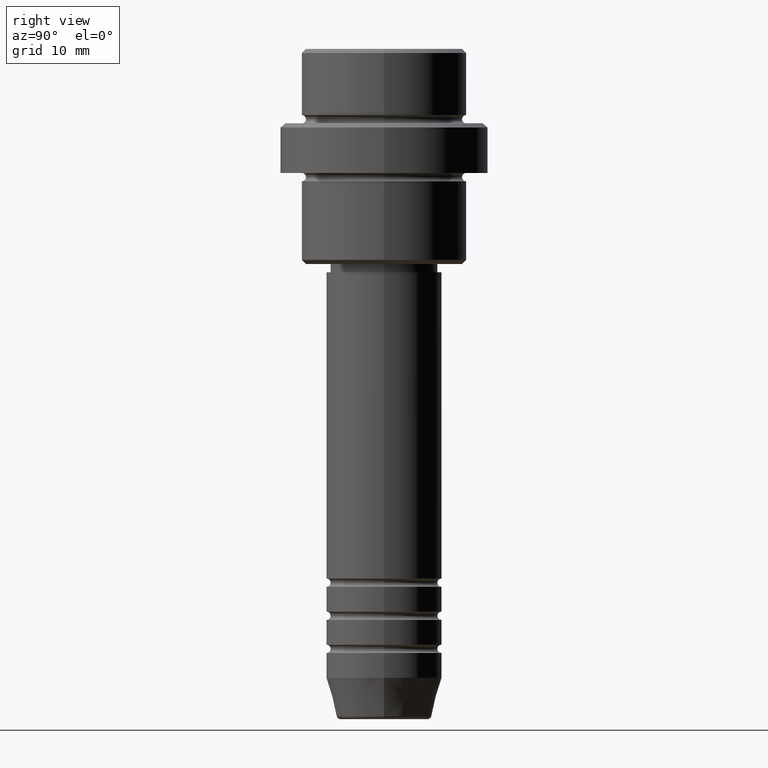
[diagram: clean part render]
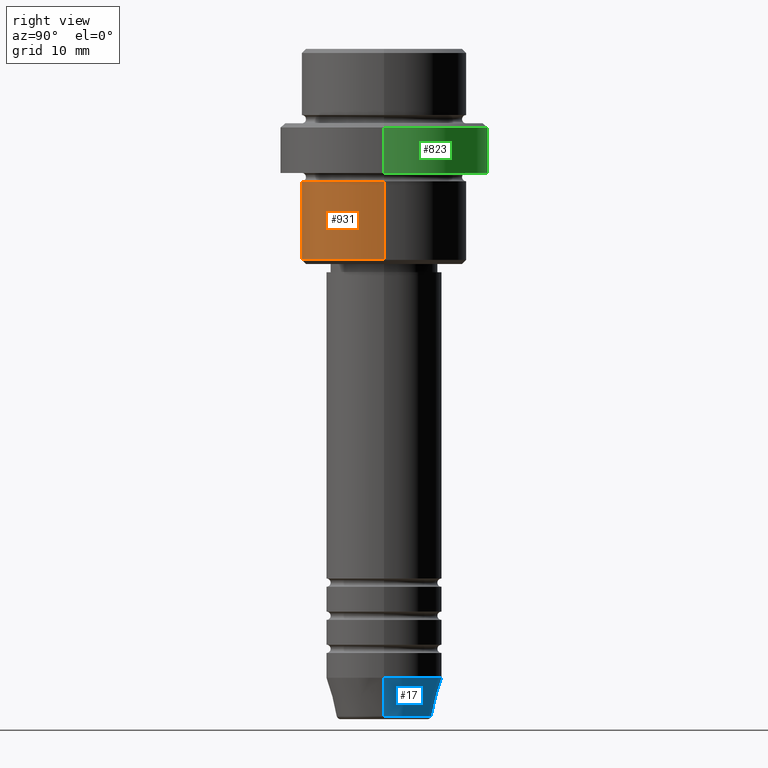
[diagram: same view with three faces highlighted in distinct colors, each labeled with its STEP entity id]
A machine part, right view with three faces highlighted in distinct colors.
Their STEP definitions:

[orange] entity #931 — the highlighted cylindrical surface (partial cylindrical patch) has radius 10 mm, axis along (-0, -0, 1).
#69 = EDGE_CURVE ( 'NONE', #1130, #269, #154, .T. ) ;
#101 = DIRECTION ( 'NONE',  ( -0.000000000000000000, -0.000000000000000000, 1.000000000000000000 ) ) ;
#154 = LINE ( 'NONE', #1236, #488 ) ;
#167 = AXIS2_PLACEMENT_3D ( 'NONE', #1020, #1148, #1366 ) ;
#212 = CARTESIAN_POINT ( 'NONE',  ( -10.00000000000000000, 1.224646799147353256E-15, -16.00000000000000000 ) ) ;
#253 = ORIENTED_EDGE ( 'NONE', *, *, #1200, .F. ) ;
#259 = DIRECTION ( 'NONE',  ( 1.000000000000000000, 0.000000000000000000, 0.000000000000000000 ) ) ;
#269 = VERTEX_POINT ( 'NONE', #1301 ) ;
#348 = VERTEX_POINT ( 'NONE', #1322 ) ;
#350 = VECTOR ( 'NONE', #1044, 1000.000000000000000 ) ;
#359 = VERTEX_POINT ( 'NONE', #212 ) ;
#366 = DIRECTION ( 'NONE',  ( -0.000000000000000000, -0.000000000000000000, 1.000000000000000000 ) ) ;
#488 = VECTOR ( 'NONE', #366, 1000.000000000000000 ) ;
#539 = EDGE_CURVE ( 'NONE', #348, #1130, #1267, .T. ) ;
#566 = EDGE_CURVE ( 'NONE', #348, #359, #1136, .T. ) ;
#579 = AXIS2_PLACEMENT_3D ( 'NONE', #1258, #906, #259 ) ;
#604 = CARTESIAN_POINT ( 'NONE',  ( -10.00000000000000000, 1.224646799147353256E-15, 0.000000000000000000 ) ) ;
#705 = CYLINDRICAL_SURFACE ( 'NONE', #579, 10.00000000000000000 ) ;
#789 = FACE_OUTER_BOUND ( 'NONE', #1393, .T. ) ;
#867 = CARTESIAN_POINT ( 'NONE',  ( 0.000000000000000000, 0.000000000000000000, -16.00000000000000000 ) ) ;
#891 = ORIENTED_EDGE ( 'NONE', *, *, #539, .T. ) ;
#906 = DIRECTION ( 'NONE',  ( -0.000000000000000000, -0.000000000000000000, 1.000000000000000000 ) ) ;
#908 = ORIENTED_EDGE ( 'NONE', *, *, #566, .F. ) ;
#931 = ADVANCED_FACE ( 'NONE', ( #789 ), #705, .T. ) ;
#942 = CARTESIAN_POINT ( 'NONE',  ( 10.00000000000000000, 0.000000000000000000, -25.50000000000000355 ) ) ;
#1020 = CARTESIAN_POINT ( 'NONE',  ( 0.000000000000000000, 0.000000000000000000, -25.50000000000000355 ) ) ;
#1044 = DIRECTION ( 'NONE',  ( -0.000000000000000000, -0.000000000000000000, 1.000000000000000000 ) ) ;
#1081 = DIRECTION ( 'NONE',  ( 1.000000000000000000, 0.000000000000000000, 0.000000000000000000 ) ) ;
#1130 = VERTEX_POINT ( 'NONE', #942 ) ;
#1136 = LINE ( 'NONE', #604, #350 ) ;
#1148 = DIRECTION ( 'NONE',  ( -0.000000000000000000, -0.000000000000000000, 1.000000000000000000 ) ) ;
#1200 = EDGE_CURVE ( 'NONE', #359, #269, #1336, .T. ) ;
#1236 = CARTESIAN_POINT ( 'NONE',  ( 10.00000000000000000, 0.000000000000000000, 0.000000000000000000 ) ) ;
#1258 = CARTESIAN_POINT ( 'NONE',  ( 0.000000000000000000, 0.000000000000000000, 0.000000000000000000 ) ) ;
#1267 = CIRCLE ( 'NONE', #167, 10.00000000000000000 ) ;
#1301 = CARTESIAN_POINT ( 'NONE',  ( 10.00000000000000000, 0.000000000000000000, -16.00000000000000000 ) ) ;
#1314 = AXIS2_PLACEMENT_3D ( 'NONE', #867, #101, #1081 ) ;
#1322 = CARTESIAN_POINT ( 'NONE',  ( -10.00000000000000000, 1.224646799147353256E-15, -25.50000000000000355 ) ) ;
#1336 = CIRCLE ( 'NONE', #1314, 10.00000000000000000 ) ;
#1366 = DIRECTION ( 'NONE',  ( -1.000000000000000000, 0.000000000000000000, 0.000000000000000000 ) ) ;
#1380 = ORIENTED_EDGE ( 'NONE', *, *, #69, .T. ) ;
#1393 = EDGE_LOOP ( 'NONE', ( #908, #891, #1380, #253 ) ) ;

[blue] entity #17 — the highlighted conical surface has half-angle 15 deg.
#16 = CARTESIAN_POINT ( 'NONE',  ( -7.000000000000000000, 8.572527594031473190E-16, -76.00000000000001421 ) ) ;
#17 = ADVANCED_FACE ( 'NONE', ( #889 ), #740, .T. ) ;
#32 = DIRECTION ( 'NONE',  ( 0.2588190451025220162, 0.000000000000000000, 0.9659258262890678681 ) ) ;
#40 = CARTESIAN_POINT ( 'NONE',  ( 0.000000000000000000, 0.000000000000000000, -76.00000000000001421 ) ) ;
#53 = EDGE_CURVE ( 'NONE', #868, #203, #1154, .T. ) ;
#70 = VECTOR ( 'NONE', #32, 1000.000000000000114 ) ;
#77 = ORIENTED_EDGE ( 'NONE', *, *, #572, .F. ) ;
#115 = AXIS2_PLACEMENT_3D ( 'NONE', #40, #153, #814 ) ;
#151 = VERTEX_POINT ( 'NONE', #805 ) ;
#153 = DIRECTION ( 'NONE',  ( -0.000000000000000000, -0.000000000000000000, 1.000000000000000000 ) ) ;
#169 = AXIS2_PLACEMENT_3D ( 'NONE', #343, #234, #563 ) ;
#203 = VERTEX_POINT ( 'NONE', #414 ) ;
#234 = DIRECTION ( 'NONE',  ( -0.000000000000000000, -0.000000000000000000, 1.000000000000000000 ) ) ;
#250 = CARTESIAN_POINT ( 'NONE',  ( -7.000000000000000000, 8.572527594031473190E-16, -76.00000000000001421 ) ) ;
#267 = DIRECTION ( 'NONE',  ( 1.000000000000000000, 0.000000000000000000, 0.000000000000000000 ) ) ;
#291 = ORIENTED_EDGE ( 'NONE', *, *, #53, .T. ) ;
#343 = CARTESIAN_POINT ( 'NONE',  ( 0.000000000000000000, 0.000000000000000000, -76.00000000000001421 ) ) ;
#414 = CARTESIAN_POINT ( 'NONE',  ( -5.759553456999441323, 7.812973149831956703E-16, -80.62940952255125637 ) ) ;
#422 = VECTOR ( 'NONE', #1026, 1000.000000000000114 ) ;
#533 = AXIS2_PLACEMENT_3D ( 'NONE', #1360, #598, #267 ) ;
#563 = DIRECTION ( 'NONE',  ( 1.000000000000000000, 0.000000000000000000, 0.000000000000000000 ) ) ;
#572 = EDGE_CURVE ( 'NONE', #151, #974, #1150, .T. ) ;
#590 = LINE ( 'NONE', #16, #422 ) ;
#598 = DIRECTION ( 'NONE',  ( -0.000000000000000000, -0.000000000000000000, 1.000000000000000000 ) ) ;
#692 = LINE ( 'NONE', #801, #70 ) ;
#740 = CONICAL_SURFACE ( 'NONE', #169, 7.000000000000000000, 0.2617993877991507956 ) ;
#751 = ORIENTED_EDGE ( 'NONE', *, *, #938, .T. ) ;
#801 = CARTESIAN_POINT ( 'NONE',  ( 7.000000000000000000, 0.000000000000000000, -76.00000000000001421 ) ) ;
#805 = CARTESIAN_POINT ( 'NONE',  ( 7.000000000000000000, 0.000000000000000000, -76.00000000000001421 ) ) ;
#814 = DIRECTION ( 'NONE',  ( 1.000000000000000000, 0.000000000000000000, 0.000000000000000000 ) ) ;
#868 = VERTEX_POINT ( 'NONE', #1325 ) ;
#889 = FACE_OUTER_BOUND ( 'NONE', #1392, .T. ) ;
#927 = EDGE_CURVE ( 'NONE', #868, #151, #692, .T. ) ;
#938 = EDGE_CURVE ( 'NONE', #203, #974, #590, .T. ) ;
#974 = VERTEX_POINT ( 'NONE', #250 ) ;
#1026 = DIRECTION ( 'NONE',  ( -0.2588190451025220162, 3.169619151431780349E-17, 0.9659258262890678681 ) ) ;
#1116 = ORIENTED_EDGE ( 'NONE', *, *, #927, .F. ) ;
#1150 = CIRCLE ( 'NONE', #115, 7.000000000000000000 ) ;
#1154 = CIRCLE ( 'NONE', #533, 5.759553456999441323 ) ;
#1325 = CARTESIAN_POINT ( 'NONE',  ( 5.759553456999441323, 0.000000000000000000, -80.62940952255125637 ) ) ;
#1360 = CARTESIAN_POINT ( 'NONE',  ( 0.000000000000000000, 0.000000000000000000, -80.62940952255125637 ) ) ;
#1392 = EDGE_LOOP ( 'NONE', ( #291, #751, #77, #1116 ) ) ;

[green] entity #823 — the highlighted cylindrical surface (partial cylindrical patch) has radius 12.5 mm, axis along (-0, -0, 1).
#49 = AXIS2_PLACEMENT_3D ( 'NONE', #361, #912, #1113 ) ;
#56 = ORIENTED_EDGE ( 'NONE', *, *, #970, .T. ) ;
#73 = VECTOR ( 'NONE', #1021, 1000.000000000000000 ) ;
#125 = EDGE_CURVE ( 'NONE', #797, #997, #1122, .T. ) ;
#146 = VECTOR ( 'NONE', #175, 1000.000000000000000 ) ;
#149 = VERTEX_POINT ( 'NONE', #161 ) ;
#161 = CARTESIAN_POINT ( 'NONE',  ( 12.50000000000000000, 0.000000000000000000, -15.00000000000000178 ) ) ;
#175 = DIRECTION ( 'NONE',  ( -0.000000000000000000, -0.000000000000000000, 1.000000000000000000 ) ) ;
#215 = AXIS2_PLACEMENT_3D ( 'NONE', #1134, #1329, #456 ) ;
#303 = CARTESIAN_POINT ( 'NONE',  ( 12.50000000000000000, 0.000000000000000000, 0.000000000000000000 ) ) ;
#361 = CARTESIAN_POINT ( 'NONE',  ( 0.000000000000000000, 0.000000000000000000, -9.499999999999992895 ) ) ;
#378 = CARTESIAN_POINT ( 'NONE',  ( -12.50000000000000000, 1.530808498934191521E-15, -9.499999999999992895 ) ) ;
#456 = DIRECTION ( 'NONE',  ( 1.000000000000000000, 0.000000000000000000, 0.000000000000000000 ) ) ;
#470 = CARTESIAN_POINT ( 'NONE',  ( 12.50000000000000000, 0.000000000000000000, -9.499999999999992895 ) ) ;
#560 = CARTESIAN_POINT ( 'NONE',  ( 0.000000000000000000, 0.000000000000000000, 0.000000000000000000 ) ) ;
#646 = FACE_OUTER_BOUND ( 'NONE', #980, .T. ) ;
#676 = CARTESIAN_POINT ( 'NONE',  ( -12.50000000000000000, 1.530808498934191521E-15, -15.00000000000000178 ) ) ;
#797 = VERTEX_POINT ( 'NONE', #676 ) ;
#823 = ADVANCED_FACE ( 'NONE', ( #646 ), #892, .T. ) ;
#862 = DIRECTION ( 'NONE',  ( 1.000000000000000000, 0.000000000000000000, 0.000000000000000000 ) ) ;
#873 = ORIENTED_EDGE ( 'NONE', *, *, #1144, .F. ) ;
#892 = CYLINDRICAL_SURFACE ( 'NONE', #1313, 12.50000000000000000 ) ;
#912 = DIRECTION ( 'NONE',  ( 0.000000000000000000, 0.000000000000000000, -1.000000000000000000 ) ) ;
#940 = VERTEX_POINT ( 'NONE', #470 ) ;
#951 = CIRCLE ( 'NONE', #49, 12.50000000000000000 ) ;
#970 = EDGE_CURVE ( 'NONE', #149, #797, #1333, .T. ) ;
#980 = EDGE_LOOP ( 'NONE', ( #56, #1394, #1276, #873 ) ) ;
#987 = DIRECTION ( 'NONE',  ( -0.000000000000000000, -0.000000000000000000, 1.000000000000000000 ) ) ;
#997 = VERTEX_POINT ( 'NONE', #378 ) ;
#1021 = DIRECTION ( 'NONE',  ( -0.000000000000000000, -0.000000000000000000, 1.000000000000000000 ) ) ;
#1113 = DIRECTION ( 'NONE',  ( 1.000000000000000000, 0.000000000000000000, 0.000000000000000000 ) ) ;
#1122 = LINE ( 'NONE', #1256, #73 ) ;
#1134 = CARTESIAN_POINT ( 'NONE',  ( 0.000000000000000000, 0.000000000000000000, -15.00000000000000178 ) ) ;
#1144 = EDGE_CURVE ( 'NONE', #149, #940, #1282, .T. ) ;
#1256 = CARTESIAN_POINT ( 'NONE',  ( -12.50000000000000000, 1.530808498934191521E-15, 0.000000000000000000 ) ) ;
#1276 = ORIENTED_EDGE ( 'NONE', *, *, #1396, .T. ) ;
#1282 = LINE ( 'NONE', #303, #146 ) ;
#1313 = AXIS2_PLACEMENT_3D ( 'NONE', #560, #987, #862 ) ;
#1329 = DIRECTION ( 'NONE',  ( -0.000000000000000000, -0.000000000000000000, 1.000000000000000000 ) ) ;
#1333 = CIRCLE ( 'NONE', #215, 12.50000000000000000 ) ;
#1394 = ORIENTED_EDGE ( 'NONE', *, *, #125, .T. ) ;
#1396 = EDGE_CURVE ( 'NONE', #997, #940, #951, .T. ) ;